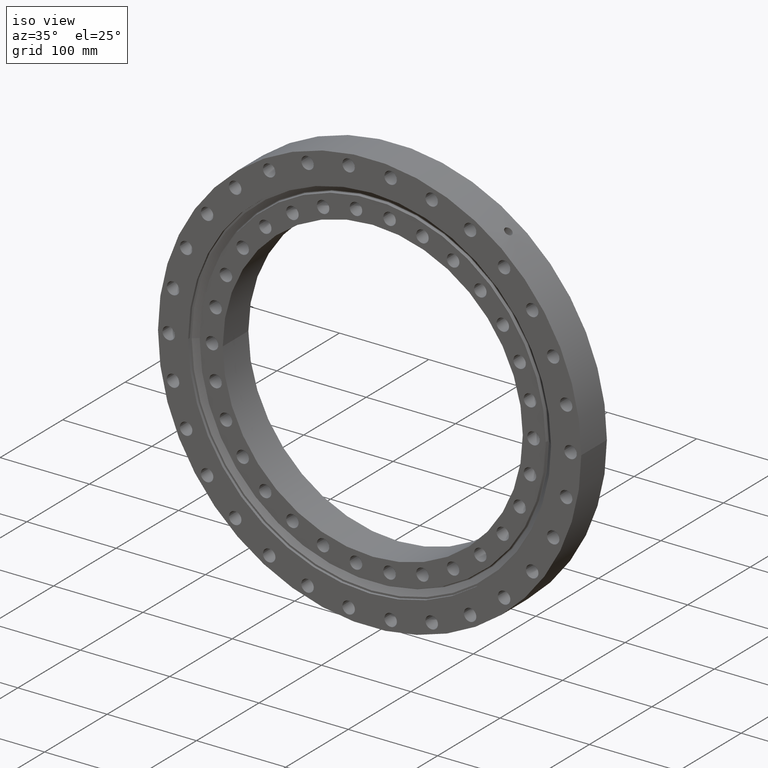
[diagram: clean part render]
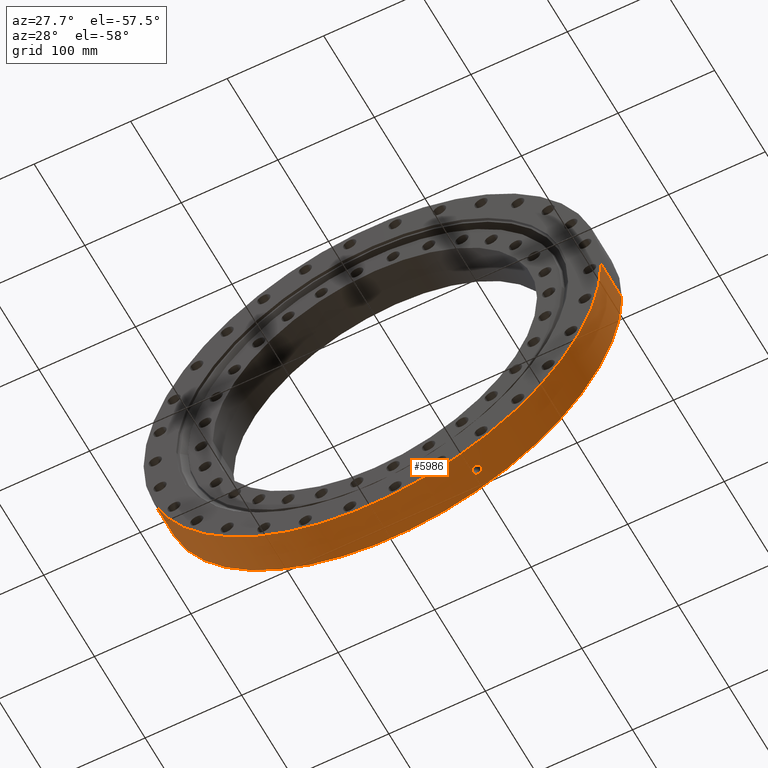
[diagram: tour spotlight — one face highlighted and labeled with its STEP entity id]
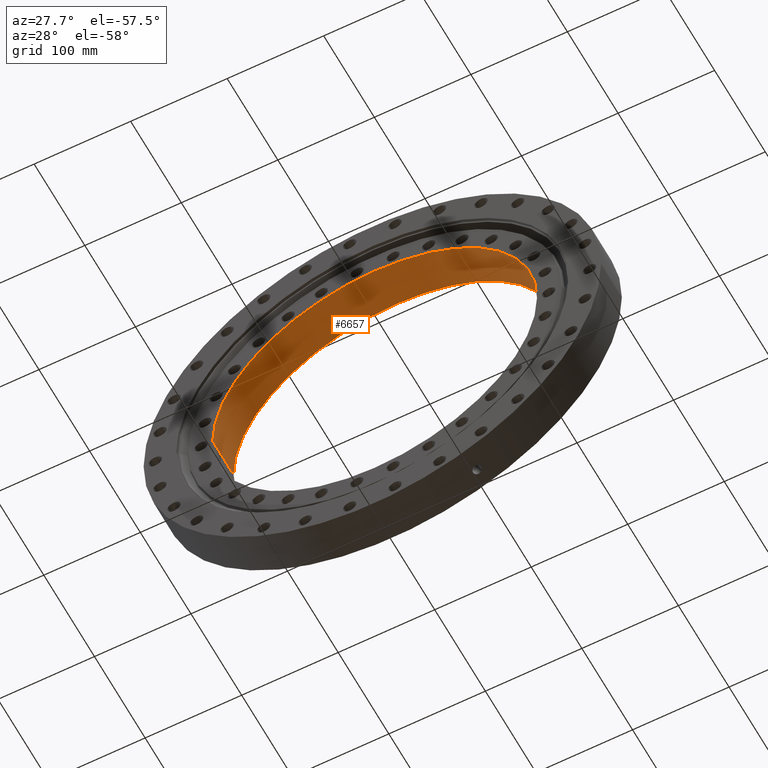
[diagram: tour spotlight — one face highlighted and labeled with its STEP entity id]
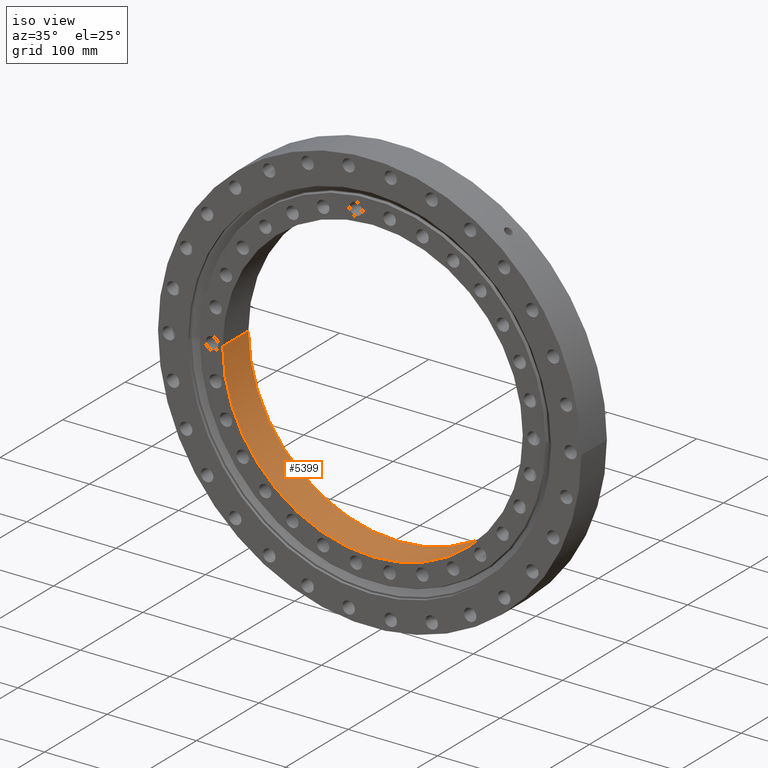
[diagram: tour spotlight — one face highlighted and labeled with its STEP entity id]
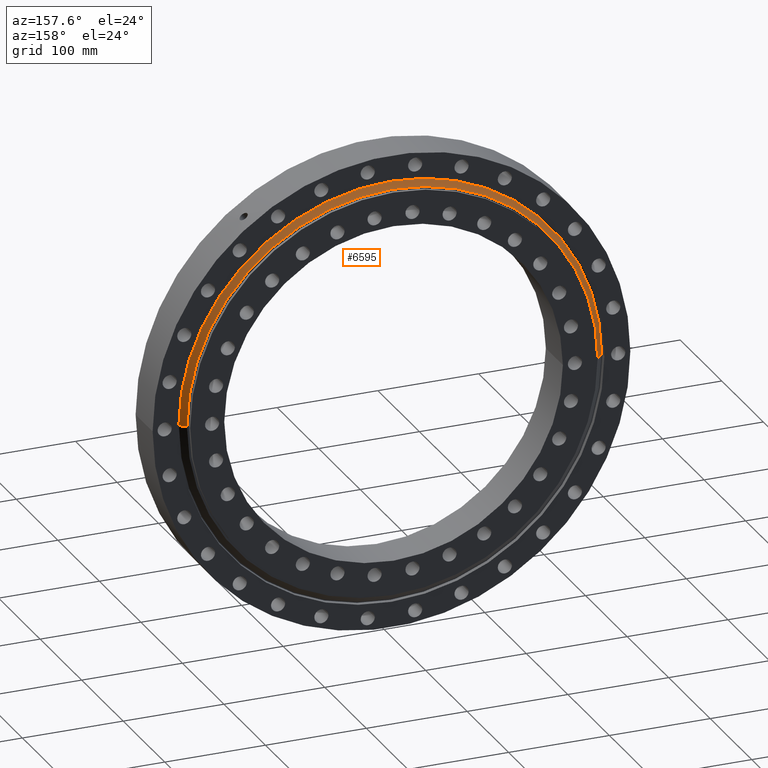
[diagram: tour spotlight — one face highlighted and labeled with its STEP entity id]
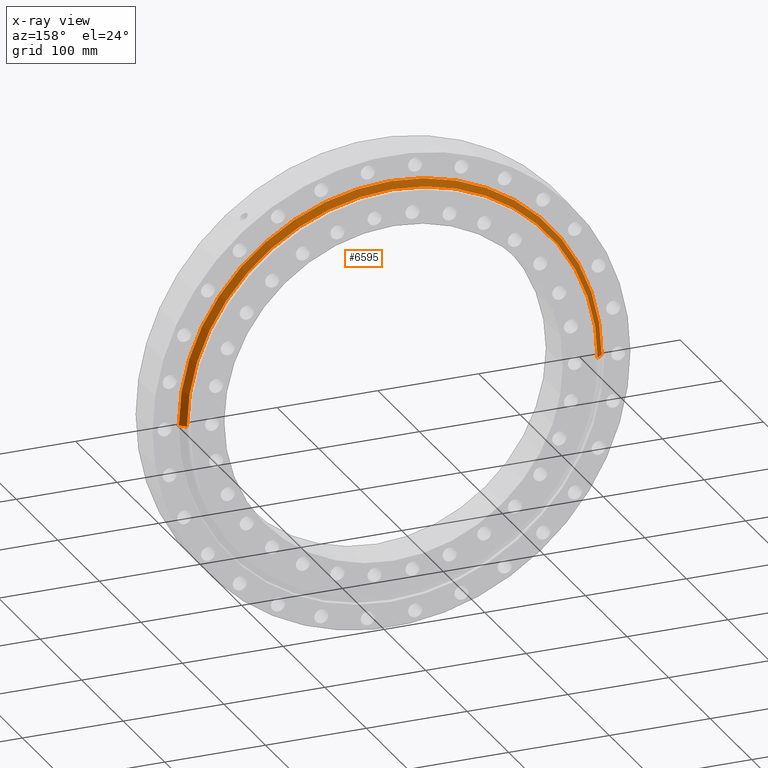
[diagram: x-ray of the same camera — body ghosted, this tour face saturated]
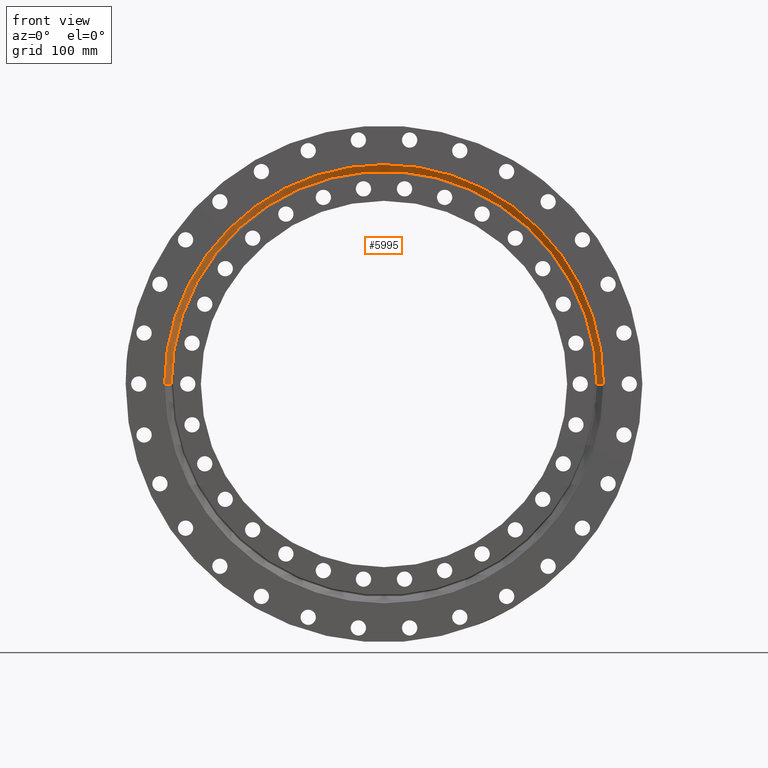
[diagram: tour spotlight — one face highlighted and labeled with its STEP entity id]
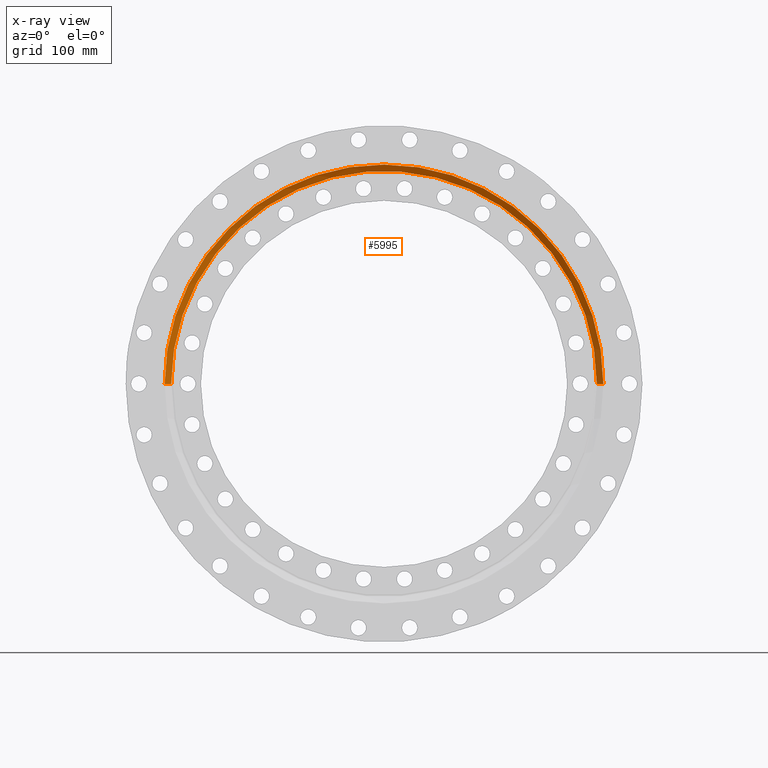
[diagram: x-ray of the same camera — body ghosted, this tour face saturated]
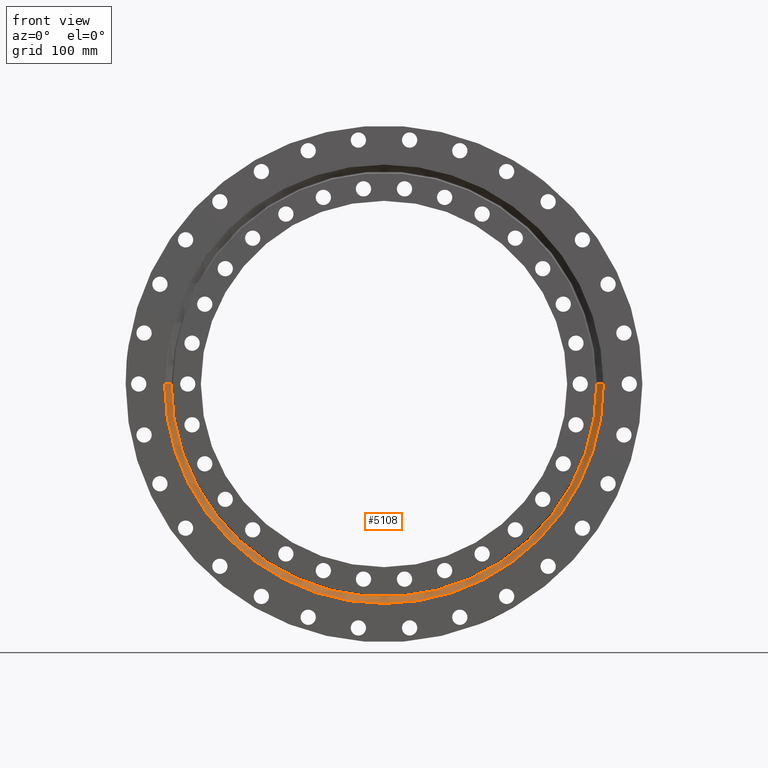
[diagram: tour spotlight — one face highlighted and labeled with its STEP entity id]
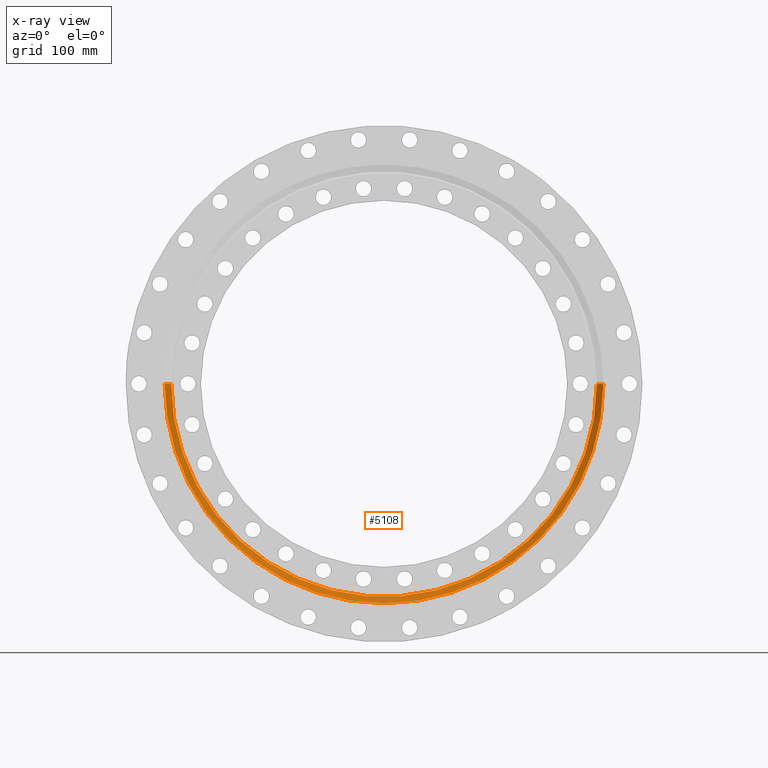
[diagram: x-ray of the same camera — body ghosted, this tour face saturated]
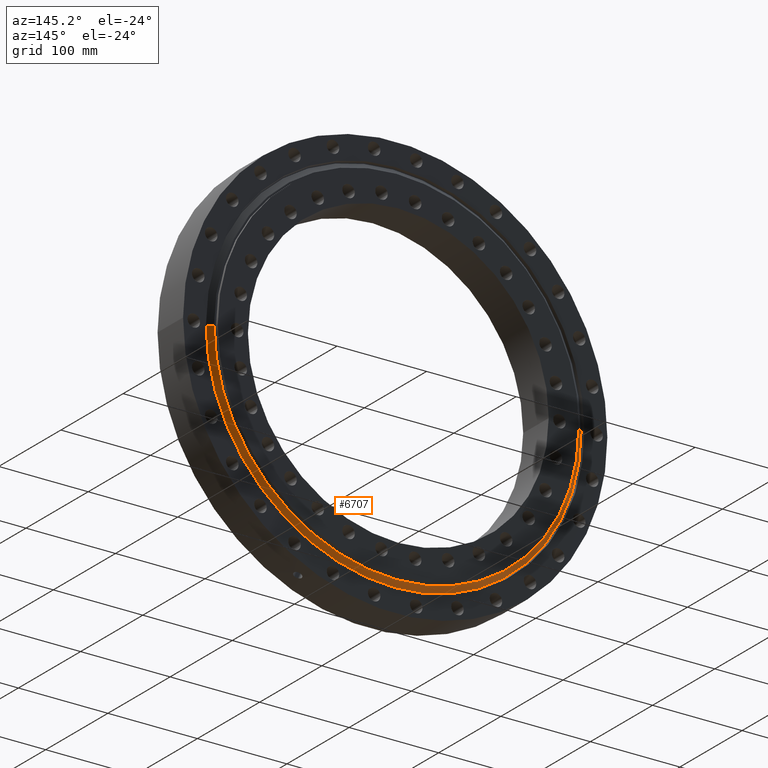
[diagram: tour spotlight — one face highlighted and labeled with its STEP entity id]
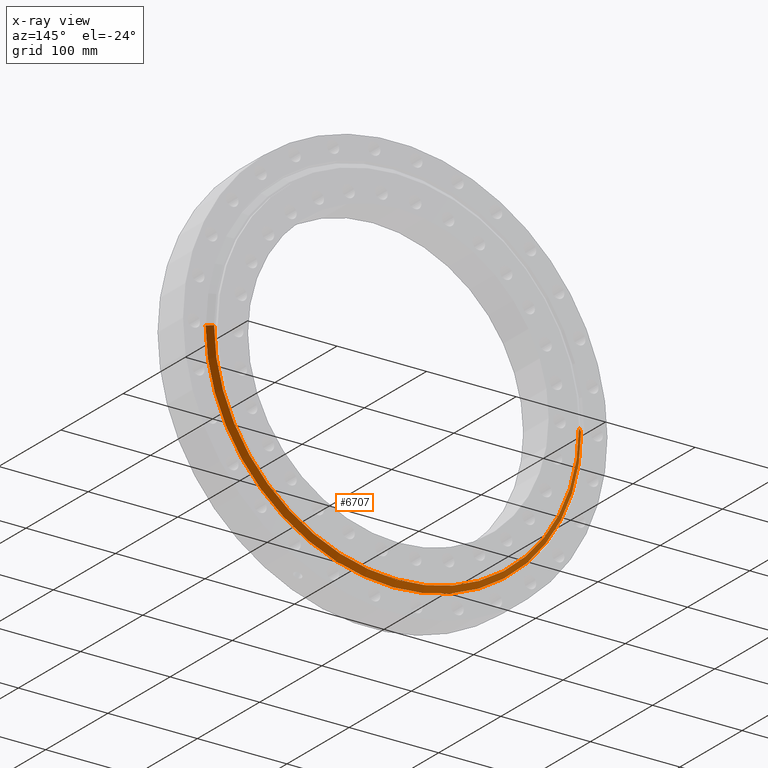
[diagram: x-ray of the same camera — body ghosted, this tour face saturated]
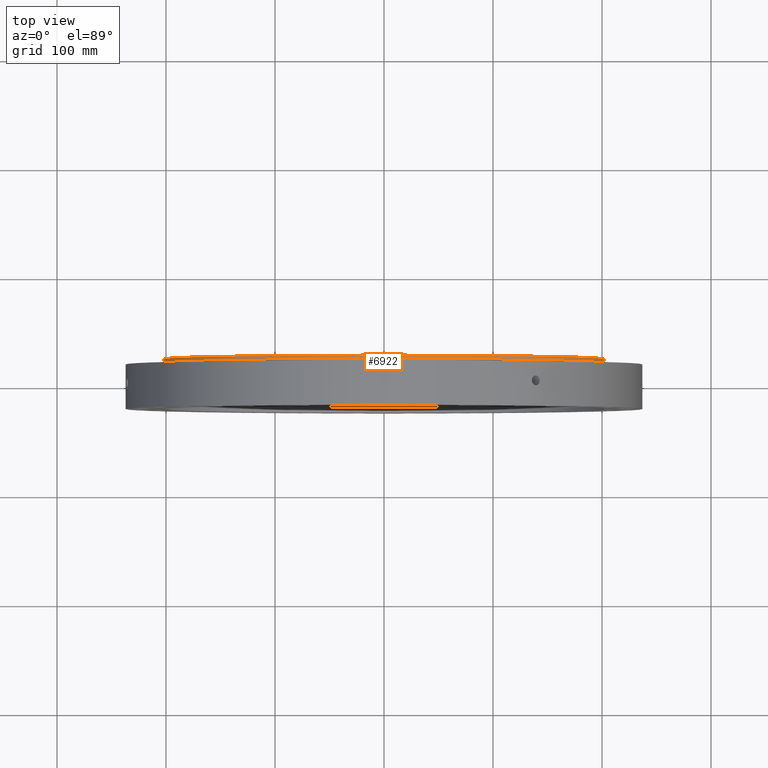
[diagram: tour spotlight — one face highlighted and labeled with its STEP entity id]
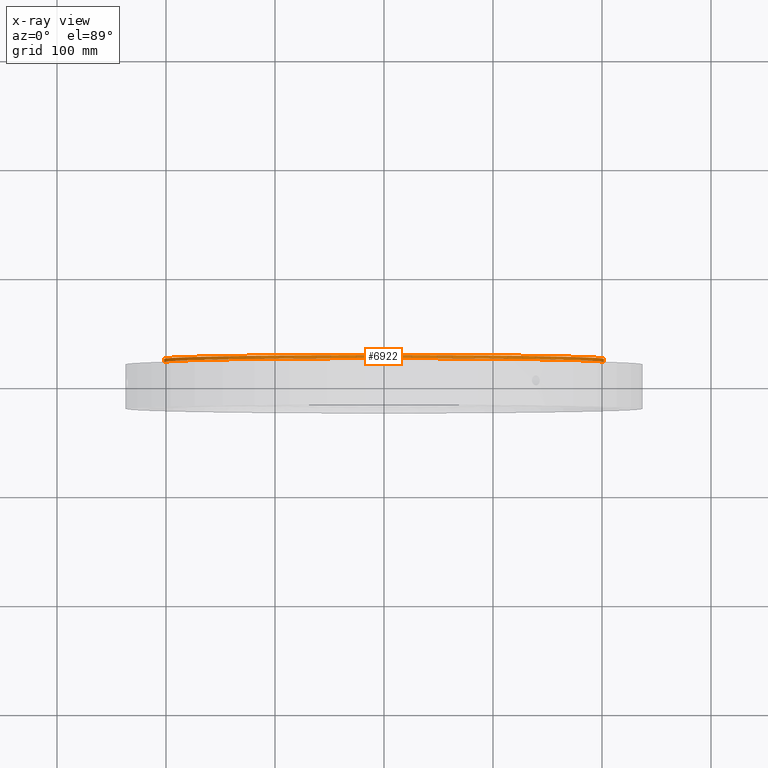
[diagram: x-ray of the same camera — body ghosted, this tour face saturated]
A machine part: a face-by-face anatomy tour. The part has 204 B-rep faces; the first image is the clean iso view, then the 8 largest visible faces are spotlighted one at a time (largest first), each with its STEP entity span.

Face 1 — auxiliary view, entity #5986. In plain terms, the highlighted cylindrical surface (partial cylindrical patch) has radius 237 mm, axis along (0, 1, 0).
Definition (entity closure, byte-faithful):
#3 = CARTESIAN_POINT ( 'NONE',  ( 100.4901609947200400, 3.620270686997019600E-009, -214.6409269996177600 ) ) ;
#71 = EDGE_CURVE ( 'NONE', #1976, #3892, #4608, .T. ) ;
#308 = ORIENTED_EDGE ( 'NONE', *, *, #3224, .T. ) ;
#378 = ORIENTED_EDGE ( 'NONE', *, *, #4064, .F. ) ;
#434 = CARTESIAN_POINT ( 'NONE',  ( 237.0000000000000000, 18.00000000000000400, 2.902412913979226800E-014 ) ) ;
#546 = ORIENTED_EDGE ( 'NONE', *, *, #3629, .F. ) ;
#562 = ORIENTED_EDGE ( 'NONE', *, *, #3875, .F. ) ;
#571 = ORIENTED_EDGE ( 'NONE', *, *, #71, .F. ) ;
#622 = EDGE_CURVE ( 'NONE', #2593, #3639, #6958, .T. ) ;
#858 = AXIS2_PLACEMENT_3D ( 'NONE', #3900, #3889, #2687 ) ;
#1026 = ORIENTED_EDGE ( 'NONE', *, *, #622, .T. ) ;
#1043 = DIRECTION ( 'NONE',  ( -1.000000000000000000, 0.0000000000000000000, 0.0000000000000000000 ) ) ;
#1124 = FACE_OUTER_BOUND ( 'NONE', #2529, .T. ) ;
#1442 = AXIS2_PLACEMENT_3D ( 'NONE', #1698, #1964, #1043 ) ;
#1555 = CARTESIAN_POINT ( 'NONE',  ( 92.29520850035233100, 0.5902201731421887800, -218.2901687120989600 ) ) ;
#1561 = CARTESIAN_POINT ( 'NONE',  ( 92.68818754524143300, 1.995818397773016200, -218.1236178787476400 ) ) ;
#1562 = CARTESIAN_POINT ( 'NONE',  ( 92.47999962413750600, 1.450265922157809100, -218.2119668039663300 ) ) ;
#1569 = CARTESIAN_POINT ( 'NONE',  ( 92.40051239382880500, 1.165115265983005300, -218.2456152545521200 ) ) ;
#1698 = CARTESIAN_POINT ( 'NONE',  ( 0.0000000000000000000, 22.16364734299516900, 0.0000000000000000000 ) ) ;
#1964 = DIRECTION ( 'NONE',  ( 0.0000000000000000000, 1.000000000000000000, 0.0000000000000000000 ) ) ;
#1976 = VERTEX_POINT ( 'NONE', #2217 ) ;
#2030 = AXIS2_PLACEMENT_3D ( 'NONE', #5813, #5791, #5799 ) ;
#2190 = CARTESIAN_POINT ( 'NONE',  ( 100.4901609947200300, -0.2935306186746002300, -214.6409269996177900 ) ) ;
#2217 = CARTESIAN_POINT ( 'NONE',  ( 100.4901609947200400, 3.620270686997019600E-009, -214.6409269996177600 ) ) ;
#2315 = B_SPLINE_CURVE_WITH_KNOTS ( 'NONE', 3,
 ( #4348, #6125, #1555, #1569, #1562, #1561, #5327, #5305, #5318, #5312, #5283, #5290, #5295, #5287, #5275, #5263, #5409, #5256, #5253, #5226, #5192, #5219, #5217, #5207, #5185, #5184, #5175, #5372, #5162, #5161, #5139, #5152, #5128, #5116 ),
 .UNSPECIFIED., .F., .F.,
 ( 4, 2, 2, 2, 2, 2, 2, 2, 2, 2, 2, 2, 2, 2, 2, 2, 4 ),
 ( 0.02110620238870187400, 0.02198530520462218400, 0.02286440802054249100, 0.02374351083646280100, 0.02462261365238310700, 0.02550171646830341800, 0.02638081928422372800, 0.02725992210014403800, 0.02813902491606434500, 0.02901812773198465100, 0.02989723054790496100, 0.03077633336382527100, 0.03165543617974558200, 0.03253453899566588500, 0.03341364181158619500, 0.03429274462750650500, 0.03517184744342681500 ),
 .UNSPECIFIED. ) ;
#2429 = VERTEX_POINT ( 'NONE', #434 ) ;
#2450 = CARTESIAN_POINT ( 'NONE',  ( 100.4635584351896100, -0.5916586236431368200, -214.6533874426810700 ) ) ;
#2465 = CARTESIAN_POINT ( 'NONE',  ( 97.46143164334711200, -4.356026667816502500, -216.0332207994348200 ) ) ;
#2529 = EDGE_LOOP ( 'NONE', ( #378, #1026, #308, #546 ) ) ;
#2588 = CARTESIAN_POINT ( 'NONE',  ( 98.45322200279406400, -3.904669630318122300, -215.5829829009079800 ) ) ;
#2593 = VERTEX_POINT ( 'NONE', #3451 ) ;
#2687 = DIRECTION ( 'NONE',  ( -1.000000000000000000, 0.0000000000000000000, 0.0000000000000000000 ) ) ;
#2735 = CARTESIAN_POINT ( 'NONE',  ( 99.48513867943819400, -2.972415666191123000, -215.1086965485530100 ) ) ;
#2737 = CARTESIAN_POINT ( 'NONE',  ( 93.11583595347930500, -2.743330947590920200, -217.9414320792788300 ) ) ;
#2751 = CARTESIAN_POINT ( 'NONE',  ( 92.81510068973624100, -2.253648559344720000, -218.0696764936296600 ) ) ;
#2757 = CARTESIAN_POINT ( 'NONE',  ( 97.71713438896443900, -4.271077411715782400, -215.9176603387134900 ) ) ;
#2794 = FACE_BOUND ( 'NONE', #7271, .T. ) ;
#2844 = VERTEX_POINT ( 'NONE', #3666 ) ;
#2962 = CARTESIAN_POINT ( 'NONE',  ( 92.26825187593661300, 3.620271238087932800E-009, -218.3015567872998600 ) ) ;
#2995 = CARTESIAN_POINT ( 'NONE',  ( 98.89655291397613700, -3.578935167528612700, -215.3799694979033200 ) ) ;
#3000 = CARTESIAN_POINT ( 'NONE',  ( 96.93545916574697700, -4.470816178069623200, -216.2697387598967700 ) ) ;
#3002 = CARTESIAN_POINT ( 'NONE',  ( 96.66318586674047700, -4.500121777277181300, -216.3915773758719200 ) ) ;
#3011 = VECTOR ( 'NONE', #4472, 1000.000000000000000 ) ;
#3027 = CARTESIAN_POINT ( 'NONE',  ( 99.10356608036630600, -3.392486275868144200, -215.2847587244368700 ) ) ;
#3037 = CARTESIAN_POINT ( 'NONE',  ( 93.88014341555006600, -3.576141458418463000, -217.6133713292441600 ) ) ;
#3040 = CARTESIAN_POINT ( 'NONE',  ( 95.06832692622208500, -4.269365525714881000, -217.0969519550434400 ) ) ;
#3045 = CARTESIAN_POINT ( 'NONE',  ( 94.57196214497052700, -4.044916529699988500, -217.3136381103858500 ) ) ;
#3052 = CARTESIAN_POINT ( 'NONE',  ( 95.85967680438768900, -4.471278850760725700, -216.7487174075187100 ) ) ;
#3054 = CARTESIAN_POINT ( 'NONE',  ( 98.21387252400037900, -4.045411622486161800, -215.6921640745773600 ) ) ;
#3070 = CARTESIAN_POINT ( 'NONE',  ( 94.33241414755156000, -3.905602196453701300, -217.4177001766382800 ) ) ;
#3088 = CARTESIAN_POINT ( 'NONE',  ( 95.32884064626034600, -4.355937805094904500, -216.9827096242600200 ) ) ;
#3089 = CARTESIAN_POINT ( 'NONE',  ( 96.12656291140088200, -4.499877436856617200, -216.6304922303562800 ) ) ;
#3110 = LINE ( 'NONE', #4691, #3011 ) ;
#3224 = EDGE_CURVE ( 'NONE', #3639, #2844, #5896, .T. ) ;
#3451 = CARTESIAN_POINT ( 'NONE',  ( 237.0000000000000000, -23.00000000000001400, 2.902412913979226800E-014 ) ) ;
#3542 = CARTESIAN_POINT ( 'NONE',  ( 92.29504713151082700, -0.5890188784448892000, -218.2902369373577200 ) ) ;
#3566 = CARTESIAN_POINT ( 'NONE',  ( 92.48017795204667400, -1.450711798165750700, -218.2118911019279900 ) ) ;
#3629 = EDGE_CURVE ( 'NONE', #2429, #2844, #4863, .T. ) ;
#3639 = VERTEX_POINT ( 'NONE', #5805 ) ;
#3662 = CARTESIAN_POINT ( 'NONE',  ( 92.40033004245690100, -1.164438999805416500, -218.2456924551332200 ) ) ;
#3666 = CARTESIAN_POINT ( 'NONE',  ( -237.0000000000000000, 18.00000000000000400, 0.0000000000000000000 ) ) ;
#3698 = CARTESIAN_POINT ( 'NONE',  ( 100.3592666416438000, -1.168798980449056600, -214.7021679285747700 ) ) ;
#3704 = CARTESIAN_POINT ( 'NONE',  ( 100.2821623320577700, -1.449309042600405600, -214.7382142210990400 ) ) ;
#3713 = CARTESIAN_POINT ( 'NONE',  ( 100.0776675749475800, -1.994114082652979100, -214.8335941644557700 ) ) ;
#3723 = CARTESIAN_POINT ( 'NONE',  ( 93.29054778210860400, -2.974764442003903700, -217.8667408377469000 ) ) ;
#3746 = CARTESIAN_POINT ( 'NONE',  ( 92.68792082285695200, -1.995140862134696900, -218.1237310928311800 ) ) ;
#3787 = CARTESIAN_POINT ( 'NONE',  ( 92.26825187593659900, -0.2968299978523457100, -218.3015567872999400 ) ) ;
#3852 = CARTESIAN_POINT ( 'NONE',  ( 99.65402253378037800, -2.745178811162011900, -215.0304684788169100 ) ) ;
#3855 = CARTESIAN_POINT ( 'NONE',  ( 99.94977729763522200, -2.257606856043225200, -214.8931562417375300 ) ) ;
#3868 = CARTESIAN_POINT ( 'NONE',  ( 93.67195640284165800, -3.389719113196599100, -217.7030262821627700 ) ) ;
#3875 = EDGE_CURVE ( 'NONE', #3892, #1976, #2315, .T. ) ;
#3889 = DIRECTION ( 'NONE',  ( 0.0000000000000000000, 1.000000000000000000, 0.0000000000000000000 ) ) ;
#3892 = VERTEX_POINT ( 'NONE', #5088 ) ;
#3900 = CARTESIAN_POINT ( 'NONE',  ( 0.0000000000000000000, -23.00000000000001400, 0.0000000000000000000 ) ) ;
#4064 = EDGE_CURVE ( 'NONE', #2593, #2429, #3110, .T. ) ;
#4348 = CARTESIAN_POINT ( 'NONE',  ( 92.26825187593661300, 3.620271238087932800E-009, -218.3015567872998600 ) ) ;
#4472 = DIRECTION ( 'NONE',  ( 0.0000000000000000000, 1.000000000000000000, 0.0000000000000000000 ) ) ;
#4608 = B_SPLINE_CURVE_WITH_KNOTS ( 'NONE', 3,
 ( #3, #2190, #2450, #3698, #3704, #3713, #3855, #3852, #2735, #3027, #2995, #2588, #3054, #2757, #2465, #3000, #3002, #3089, #3052, #3088, #3040, #3045, #3070, #3037, #3868, #3723, #2737, #2751, #3746, #3566, #3662, #3542, #3787, #2962 ),
 .UNSPECIFIED., .F., .F.,
 ( 4, 2, 2, 2, 2, 2, 2, 2, 2, 2, 2, 2, 2, 2, 2, 2, 4 ),
 ( 0.007036280401974018100, 0.007915650526144509700, 0.008795020650315000400, 0.009674390774485491100, 0.01055376089865598200, 0.01143313102282647300, 0.01231250114699696300, 0.01319187127116745400, 0.01407124139533794500, 0.01495061151950843500, 0.01582998164367892600, 0.01670935176784941700, 0.01758872189201991100, 0.01846809201619040200, 0.01934746214036089200, 0.02022683226453138300, 0.02110620238870187400 ),
 .UNSPECIFIED. ) ;
#4691 = CARTESIAN_POINT ( 'NONE',  ( 237.0000000000000000, 22.16364734299516900, 2.902412913979226800E-014 ) ) ;
#4863 = CIRCLE ( 'NONE', #2030, 237.0000000000000000 ) ;
#5088 = CARTESIAN_POINT ( 'NONE',  ( 92.26825187593661300, 3.620271238087932800E-009, -218.3015567872998600 ) ) ;
#5116 = CARTESIAN_POINT ( 'NONE',  ( 100.4901609947200400, 3.620270686997019600E-009, -214.6409269996177600 ) ) ;
#5128 = CARTESIAN_POINT ( 'NONE',  ( 100.4901609947200700, 0.2934413993712105000, -214.6409269996177900 ) ) ;
#5139 = CARTESIAN_POINT ( 'NONE',  ( 100.3600129588198400, 1.166182558648154000, -214.7018190886976800 ) ) ;
#5152 = CARTESIAN_POINT ( 'NONE',  ( 100.4644148409219500, 0.5853823953969682400, -214.6529866360156100 ) ) ;
#5161 = CARTESIAN_POINT ( 'NONE',  ( 100.2819044406312200, 1.449780263145493900, -214.7383342533775900 ) ) ;
#5162 = CARTESIAN_POINT ( 'NONE',  ( 100.0788019024823300, 1.991306988786929000, -214.8330653459074100 ) ) ;
#5175 = CARTESIAN_POINT ( 'NONE',  ( 99.65413230943573800, 2.745299921589565300, -215.0304185950985500 ) ) ;
#5184 = CARTESIAN_POINT ( 'NONE',  ( 99.48523987766616000, 2.971931817696907600, -215.1086471110887100 ) ) ;
#5185 = CARTESIAN_POINT ( 'NONE',  ( 99.10859912637582200, 3.387312844740947500, -215.2824391228579700 ) ) ;
#5192 = CARTESIAN_POINT ( 'NONE',  ( 97.72280274286349300, 4.268944174392861300, -215.9150944107313400 ) ) ;
#5207 = CARTESIAN_POINT ( 'NONE',  ( 98.89833356162520800, 3.577503004879497400, -215.3791526086305300 ) ) ;
#5217 = CARTESIAN_POINT ( 'NONE',  ( 98.45381016536777000, 3.904360681608869400, -215.5827150390307700 ) ) ;
#5219 = CARTESIAN_POINT ( 'NONE',  ( 98.21877023596482600, 4.042735248535610300, -215.6899333386942600 ) ) ;
#5226 = CARTESIAN_POINT ( 'NONE',  ( 97.46244875149381000, 4.355669726742699600, -216.0327607825048500 ) ) ;
#5253 = CARTESIAN_POINT ( 'NONE',  ( 96.93805891246493900, 4.470382854745718500, -216.2685723405784600 ) ) ;
#5256 = CARTESIAN_POINT ( 'NONE',  ( 96.67130567886195500, 4.499766978894613500, -216.3879548282349100 ) ) ;
#5263 = CARTESIAN_POINT ( 'NONE',  ( 95.85923284321562200, 4.471287641246855800, -216.7489151689115700 ) ) ;
#5275 = CARTESIAN_POINT ( 'NONE',  ( 95.32646377119641600, 4.355315553952318700, -216.9837552746025700 ) ) ;
#5283 = CARTESIAN_POINT ( 'NONE',  ( 93.88016250030794700, 3.576078575793006000, -217.6133621568353900 ) ) ;
#5287 = CARTESIAN_POINT ( 'NONE',  ( 95.06796689811460500, 4.269226786308148100, -217.0971095179060600 ) ) ;
#5290 = CARTESIAN_POINT ( 'NONE',  ( 94.33090889279843300, 3.904582226720259000, -217.4183523250619000 ) ) ;
#5295 = CARTESIAN_POINT ( 'NONE',  ( 94.57174246939195000, 4.044793121827863700, -217.3137336144996800 ) ) ;
#5305 = CARTESIAN_POINT ( 'NONE',  ( 93.11561228203083800, 2.742949898316132900, -217.9415274011905700 ) ) ;
#5312 = CARTESIAN_POINT ( 'NONE',  ( 93.67215575913968500, 3.389932403685174100, -217.7029406846940600 ) ) ;
#5318 = CARTESIAN_POINT ( 'NONE',  ( 93.29039937134474800, 2.974606591865529600, -217.8668045675222500 ) ) ;
#5327 = CARTESIAN_POINT ( 'NONE',  ( 92.81547108538718800, 2.254268523519911100, -218.0695186031717900 ) ) ;
#5372 = CARTESIAN_POINT ( 'NONE',  ( 99.95224755534866300, 2.253229774089493100, -214.8920082649983100 ) ) ;
#5409 = CARTESIAN_POINT ( 'NONE',  ( 96.12827151872797100, 4.500230294548322800, -216.6297388430867000 ) ) ;
#5791 = DIRECTION ( 'NONE',  ( 0.0000000000000000000, 1.000000000000000000, 0.0000000000000000000 ) ) ;
#5799 = DIRECTION ( 'NONE',  ( -1.000000000000000000, 0.0000000000000000000, 0.0000000000000000000 ) ) ;
#5805 = CARTESIAN_POINT ( 'NONE',  ( -237.0000000000000000, -23.00000000000001400, 0.0000000000000000000 ) ) ;
#5813 = CARTESIAN_POINT ( 'NONE',  ( 0.0000000000000000000, 18.00000000000000400, 0.0000000000000000000 ) ) ;
#5889 = VECTOR ( 'NONE', #7179, 1000.000000000000000 ) ;
#5896 = LINE ( 'NONE', #7221, #5889 ) ;
#5986 = ADVANCED_FACE ( 'NONE', ( #1124, #2794 ), #7178, .T. ) ;
#6125 = CARTESIAN_POINT ( 'NONE',  ( 92.26825187593658500, 0.2967397756137254400, -218.3015567872998300 ) ) ;
#6958 = CIRCLE ( 'NONE', #858, 237.0000000000000000 ) ;
#7178 = CYLINDRICAL_SURFACE ( 'NONE', #1442, 237.0000000000000000 ) ;
#7179 = DIRECTION ( 'NONE',  ( 0.0000000000000000000, 1.000000000000000000, 0.0000000000000000000 ) ) ;
#7221 = CARTESIAN_POINT ( 'NONE',  ( -237.0000000000000000, 22.16364734299516900, 0.0000000000000000000 ) ) ;
#7271 = EDGE_LOOP ( 'NONE', ( #571, #562 ) ) ;

Face 2 — auxiliary view, entity #6657. In plain terms, the highlighted cylindrical surface (partial cylindrical patch) has radius 168 mm, axis along (0, 1, 0).
Definition (entity closure, byte-faithful):
#769 = DIRECTION ( 'NONE',  ( 2.727064569436389700E-017, 1.000000000000000000, 0.0000000000000000000 ) ) ;
#797 = VERTEX_POINT ( 'NONE', #4427 ) ;
#1170 = VERTEX_POINT ( 'NONE', #7066 ) ;
#1207 = CARTESIAN_POINT ( 'NONE',  ( -168.0000000000000300, -18.00000000000000700, 0.0000000000000000000 ) ) ;
#1247 = CIRCLE ( 'NONE', #5994, 168.0000000000000300 ) ;
#1255 = DIRECTION ( 'NONE',  ( 2.727064569436389700E-017, 1.000000000000000000, 0.0000000000000000000 ) ) ;
#1258 = DIRECTION ( 'NONE',  ( -1.000000000000000000, 2.065146995210484400E-017, 0.0000000000000000000 ) ) ;
#1296 = CARTESIAN_POINT ( 'NONE',  ( 1.692367527159823000E-015, 31.02910628019324300, 0.0000000000000000000 ) ) ;
#1377 = CARTESIAN_POINT ( 'NONE',  ( 168.0000000000000300, 22.99999999999998900, 2.057406622567553600E-014 ) ) ;
#1831 = EDGE_CURVE ( 'NONE', #1170, #4908, #3085, .T. ) ;
#2299 = VERTEX_POINT ( 'NONE', #1207 ) ;
#2384 = DIRECTION ( 'NONE',  ( -1.000000000000000000, 2.065146995210484400E-017, 0.0000000000000000000 ) ) ;
#3085 = CIRCLE ( 'NONE', #7115, 168.0000000000000300 ) ;
#3135 = AXIS2_PLACEMENT_3D ( 'NONE', #1296, #1255, #1258 ) ;
#3620 = VECTOR ( 'NONE', #4948, 1000.000000000000000 ) ;
#3689 = LINE ( 'NONE', #4987, #3620 ) ;
#3929 = EDGE_CURVE ( 'NONE', #797, #4908, #3689, .T. ) ;
#3986 = DIRECTION ( 'NONE',  ( 2.727064569436389700E-017, 1.000000000000000000, 0.0000000000000000000 ) ) ;
#4236 = DIRECTION ( 'NONE',  ( -1.000000000000000000, 2.065146995210484400E-017, 0.0000000000000000000 ) ) ;
#4245 = CARTESIAN_POINT ( 'NONE',  ( 1.473408614550280900E-015, 22.99999999999999300, 0.0000000000000000000 ) ) ;
#4427 = CARTESIAN_POINT ( 'NONE',  ( 168.0000000000000300, -18.00000000000001400, 2.057406622567553600E-014 ) ) ;
#4908 = VERTEX_POINT ( 'NONE', #1377 ) ;
#4948 = DIRECTION ( 'NONE',  ( 2.727064569436389700E-017, 1.000000000000000000, 0.0000000000000000000 ) ) ;
#4987 = CARTESIAN_POINT ( 'NONE',  ( 168.0000000000000300, 31.02910628019324000, 2.057406622567553600E-014 ) ) ;
#5172 = EDGE_CURVE ( 'NONE', #2299, #797, #1247, .T. ) ;
#5284 = CARTESIAN_POINT ( 'NONE',  ( 3.553121410813609700E-016, -18.00000000000001100, 0.0000000000000000000 ) ) ;
#5291 = EDGE_LOOP ( 'NONE', ( #5982, #6184, #6194, #6289 ) ) ;
#5982 = ORIENTED_EDGE ( 'NONE', *, *, #3929, .F. ) ;
#5994 = AXIS2_PLACEMENT_3D ( 'NONE', #5284, #769, #2384 ) ;
#6184 = ORIENTED_EDGE ( 'NONE', *, *, #5172, .F. ) ;
#6194 = ORIENTED_EDGE ( 'NONE', *, *, #6544, .T. ) ;
#6232 = CARTESIAN_POINT ( 'NONE',  ( -168.0000000000000300, 31.02910628019324700, 0.0000000000000000000 ) ) ;
#6243 = DIRECTION ( 'NONE',  ( 2.727064569436389700E-017, 1.000000000000000000, 0.0000000000000000000 ) ) ;
#6289 = ORIENTED_EDGE ( 'NONE', *, *, #1831, .T. ) ;
#6497 = CYLINDRICAL_SURFACE ( 'NONE', #3135, 168.0000000000000300 ) ;
#6544 = EDGE_CURVE ( 'NONE', #2299, #1170, #7202, .T. ) ;
#6657 = ADVANCED_FACE ( 'NONE', ( #6687 ), #6497, .F. ) ;
#6687 = FACE_OUTER_BOUND ( 'NONE', #5291, .T. ) ;
#7030 = VECTOR ( 'NONE', #6243, 1000.000000000000000 ) ;
#7066 = CARTESIAN_POINT ( 'NONE',  ( -168.0000000000000300, 22.99999999999999600, 0.0000000000000000000 ) ) ;
#7115 = AXIS2_PLACEMENT_3D ( 'NONE', #4245, #3986, #4236 ) ;
#7202 = LINE ( 'NONE', #6232, #7030 ) ;

Face 3 — iso view, entity #5399. In plain terms, the highlighted cylindrical surface (partial cylindrical patch) has radius 168 mm, axis along (0, 1, 0).
Definition (entity closure, byte-faithful):
#419 = DIRECTION ( 'NONE',  ( -1.000000000000000000, 2.065146995210484400E-017, 0.0000000000000000000 ) ) ;
#797 = VERTEX_POINT ( 'NONE', #4427 ) ;
#1117 = CYLINDRICAL_SURFACE ( 'NONE', #4356, 168.0000000000000300 ) ;
#1170 = VERTEX_POINT ( 'NONE', #7066 ) ;
#1180 = DIRECTION ( 'NONE',  ( 2.727064569436389700E-017, 1.000000000000000000, 0.0000000000000000000 ) ) ;
#1207 = CARTESIAN_POINT ( 'NONE',  ( -168.0000000000000300, -18.00000000000000700, 0.0000000000000000000 ) ) ;
#1238 = CARTESIAN_POINT ( 'NONE',  ( 1.692367527159823000E-015, 31.02910628019324300, 0.0000000000000000000 ) ) ;
#1377 = CARTESIAN_POINT ( 'NONE',  ( 168.0000000000000300, 22.99999999999998900, 2.057406622567553600E-014 ) ) ;
#1526 = DIRECTION ( 'NONE',  ( -1.000000000000000000, 2.065146995210484400E-017, 0.0000000000000000000 ) ) ;
#1593 = DIRECTION ( 'NONE',  ( 2.727064569436389700E-017, 1.000000000000000000, 0.0000000000000000000 ) ) ;
#1649 = CARTESIAN_POINT ( 'NONE',  ( 3.553121410813609700E-016, -18.00000000000001100, 0.0000000000000000000 ) ) ;
#1722 = CIRCLE ( 'NONE', #6875, 168.0000000000000300 ) ;
#2042 = ORIENTED_EDGE ( 'NONE', *, *, #4896, .F. ) ;
#2108 = AXIS2_PLACEMENT_3D ( 'NONE', #6513, #5854, #5867 ) ;
#2299 = VERTEX_POINT ( 'NONE', #1207 ) ;
#2466 = ORIENTED_EDGE ( 'NONE', *, *, #3929, .T. ) ;
#3620 = VECTOR ( 'NONE', #4948, 1000.000000000000000 ) ;
#3689 = LINE ( 'NONE', #4987, #3620 ) ;
#3929 = EDGE_CURVE ( 'NONE', #797, #4908, #3689, .T. ) ;
#4356 = AXIS2_PLACEMENT_3D ( 'NONE', #1238, #1180, #419 ) ;
#4427 = CARTESIAN_POINT ( 'NONE',  ( 168.0000000000000300, -18.00000000000001400, 2.057406622567553600E-014 ) ) ;
#4741 = ORIENTED_EDGE ( 'NONE', *, *, #5838, .T. ) ;
#4763 = CIRCLE ( 'NONE', #2108, 168.0000000000000300 ) ;
#4896 = EDGE_CURVE ( 'NONE', #797, #2299, #1722, .T. ) ;
#4908 = VERTEX_POINT ( 'NONE', #1377 ) ;
#4948 = DIRECTION ( 'NONE',  ( 2.727064569436389700E-017, 1.000000000000000000, 0.0000000000000000000 ) ) ;
#4987 = CARTESIAN_POINT ( 'NONE',  ( 168.0000000000000300, 31.02910628019324000, 2.057406622567553600E-014 ) ) ;
#5399 = ADVANCED_FACE ( 'NONE', ( #6892 ), #1117, .F. ) ;
#5838 = EDGE_CURVE ( 'NONE', #4908, #1170, #4763, .T. ) ;
#5854 = DIRECTION ( 'NONE',  ( 2.727064569436389700E-017, 1.000000000000000000, 0.0000000000000000000 ) ) ;
#5867 = DIRECTION ( 'NONE',  ( -1.000000000000000000, 2.065146995210484400E-017, 0.0000000000000000000 ) ) ;
#6056 = ORIENTED_EDGE ( 'NONE', *, *, #6544, .F. ) ;
#6232 = CARTESIAN_POINT ( 'NONE',  ( -168.0000000000000300, 31.02910628019324700, 0.0000000000000000000 ) ) ;
#6243 = DIRECTION ( 'NONE',  ( 2.727064569436389700E-017, 1.000000000000000000, 0.0000000000000000000 ) ) ;
#6513 = CARTESIAN_POINT ( 'NONE',  ( 1.473408614550280900E-015, 22.99999999999999300, 0.0000000000000000000 ) ) ;
#6544 = EDGE_CURVE ( 'NONE', #2299, #1170, #7202, .T. ) ;
#6825 = EDGE_LOOP ( 'NONE', ( #2042, #2466, #4741, #6056 ) ) ;
#6875 = AXIS2_PLACEMENT_3D ( 'NONE', #1649, #1593, #1526 ) ;
#6892 = FACE_OUTER_BOUND ( 'NONE', #6825, .T. ) ;
#7030 = VECTOR ( 'NONE', #6243, 1000.000000000000000 ) ;
#7066 = CARTESIAN_POINT ( 'NONE',  ( -168.0000000000000300, 22.99999999999999600, 0.0000000000000000000 ) ) ;
#7202 = LINE ( 'NONE', #6232, #7030 ) ;

Face 4 — auxiliary view, entity #6595. An x-ray twin of the same camera follows (body ghosted, this face saturated) — the face is partly hidden behind the body. In plain terms, the highlighted conical surface has half-angle 49.914 deg.
Definition (entity closure, byte-faithful):
#208 = EDGE_CURVE ( 'NONE', #4932, #2726, #4050, .T. ) ;
#681 = CARTESIAN_POINT ( 'NONE',  ( 209.7500000000000300, 14.99999999999995700, 0.0000000000000000000 ) ) ;
#793 = EDGE_CURVE ( 'NONE', #3212, #2292, #3586, .T. ) ;
#1549 = CARTESIAN_POINT ( 'NONE',  ( -203.7500000000000300, 20.05000000000003600, 2.531957257237153000E-014 ) ) ;
#2084 = DIRECTION ( 'NONE',  ( -1.000000000000000000, 1.819495421763516100E-016, 0.0000000000000000000 ) ) ;
#2171 = DIRECTION ( 'NONE',  ( 1.000000000000000000, -1.819495421763516100E-016, 0.0000000000000000000 ) ) ;
#2219 = DIRECTION ( 'NONE',  ( -1.836909530733565900E-016, -1.000000000000000000, -0.0000000000000000000 ) ) ;
#2292 = VERTEX_POINT ( 'NONE', #681 ) ;
#2297 = CARTESIAN_POINT ( 'NONE',  ( -3.040196197852624600E-015, 14.99999999999999600, 0.0000000000000000000 ) ) ;
#2350 = ORIENTED_EDGE ( 'NONE', *, *, #793, .F. ) ;
#2648 = EDGE_CURVE ( 'NONE', #4932, #3212, #7245, .T. ) ;
#2726 = VERTEX_POINT ( 'NONE', #3069 ) ;
#3069 = CARTESIAN_POINT ( 'NONE',  ( -209.7500000000000300, 15.00000000000003400, 2.568696661211573800E-014 ) ) ;
#3136 = ORIENTED_EDGE ( 'NONE', *, *, #208, .T. ) ;
#3138 = AXIS2_PLACEMENT_3D ( 'NONE', #3209, #6941, #2084 ) ;
#3154 = CARTESIAN_POINT ( 'NONE',  ( -2.112556884832173300E-015, 20.04999999999999700, 0.0000000000000000000 ) ) ;
#3165 = DIRECTION ( 'NONE',  ( 1.836909530733565900E-016, 1.000000000000000000, 0.0000000000000000000 ) ) ;
#3170 = DIRECTION ( 'NONE',  ( -1.000000000000000000, 1.873075655042441800E-016, 0.0000000000000000000 ) ) ;
#3209 = CARTESIAN_POINT ( 'NONE',  ( -3.040196197852624600E-015, 14.99999999999999600, 0.0000000000000000000 ) ) ;
#3212 = VERTEX_POINT ( 'NONE', #7236 ) ;
#3586 = LINE ( 'NONE', #4370, #5555 ) ;
#3844 = ORIENTED_EDGE ( 'NONE', *, *, #5645, .T. ) ;
#3969 = AXIS2_PLACEMENT_3D ( 'NONE', #2297, #2219, #2171 ) ;
#4050 = LINE ( 'NONE', #6128, #5412 ) ;
#4169 = AXIS2_PLACEMENT_3D ( 'NONE', #3154, #3165, #3170 ) ;
#4242 = CIRCLE ( 'NONE', #3138, 209.7500000000000300 ) ;
#4370 = CARTESIAN_POINT ( 'NONE',  ( 209.7500000000000300, 14.99999999999995700, 0.0000000000000000000 ) ) ;
#4412 = DIRECTION ( 'NONE',  ( 0.7650765054985571000, -0.6439393921279520400, 0.0000000000000000000 ) ) ;
#4932 = VERTEX_POINT ( 'NONE', #1549 ) ;
#5412 = VECTOR ( 'NONE', #5998, 1000.000000000000000 ) ;
#5439 = ORIENTED_EDGE ( 'NONE', *, *, #2648, .F. ) ;
#5555 = VECTOR ( 'NONE', #4412, 1000.000000000000200 ) ;
#5645 = EDGE_CURVE ( 'NONE', #2726, #2292, #4242, .T. ) ;
#5998 = DIRECTION ( 'NONE',  ( -0.7650765054985572100, -0.6439393921279518200, 9.369484935616503600E-017 ) ) ;
#6128 = CARTESIAN_POINT ( 'NONE',  ( -209.7500000000000300, 15.00000000000003400, 2.568696661211573500E-014 ) ) ;
#6595 = ADVANCED_FACE ( 'NONE', ( #6900 ), #6793, .T. ) ;
#6793 = CONICAL_SURFACE ( 'NONE', #3969, 209.7500000000000300, 0.8711601305813101400 ) ;
#6900 = FACE_OUTER_BOUND ( 'NONE', #7089, .T. ) ;
#6941 = DIRECTION ( 'NONE',  ( 1.836909530733565900E-016, 1.000000000000000000, 0.0000000000000000000 ) ) ;
#7089 = EDGE_LOOP ( 'NONE', ( #5439, #3136, #3844, #2350 ) ) ;
#7236 = CARTESIAN_POINT ( 'NONE',  ( 203.7500000000000300, 20.04999999999996200, 0.0000000000000000000 ) ) ;
#7245 = CIRCLE ( 'NONE', #4169, 203.7500000000000300 ) ;

Face 5 — front view, entity #5995. An x-ray twin of the same camera follows (body ghosted, this face saturated) — the face is partly hidden behind the body. In plain terms, the highlighted conical surface has half-angle 49.914 deg.
Definition (entity closure, byte-faithful):
#349 = ORIENTED_EDGE ( 'NONE', *, *, #2689, .F. ) ;
#889 = ORIENTED_EDGE ( 'NONE', *, *, #4183, .F. ) ;
#1041 = AXIS2_PLACEMENT_3D ( 'NONE', #4484, #6689, #4520 ) ;
#1379 = VERTEX_POINT ( 'NONE', #2071 ) ;
#1482 = AXIS2_PLACEMENT_3D ( 'NONE', #3788, #3602, #5231 ) ;
#2071 = CARTESIAN_POINT ( 'NONE',  ( -201.2499999999999700, -20.04999999999996500, 2.464601683284048000E-014 ) ) ;
#2127 = CARTESIAN_POINT ( 'NONE',  ( 201.2499999999999700, -20.05000000000003300, 0.0000000000000000000 ) ) ;
#2283 = AXIS2_PLACEMENT_3D ( 'NONE', #6332, #6338, #6295 ) ;
#2638 = ORIENTED_EDGE ( 'NONE', *, *, #3461, .T. ) ;
#2689 = EDGE_CURVE ( 'NONE', #3755, #1379, #7206, .T. ) ;
#2819 = CIRCLE ( 'NONE', #1041, 201.2499999999999700 ) ;
#3163 = LINE ( 'NONE', #2127, #4132 ) ;
#3219 = DIRECTION ( 'NONE',  ( -0.7650765054985579900, -0.6439393921279510400, 9.369484935616511000E-017 ) ) ;
#3258 = ORIENTED_EDGE ( 'NONE', *, *, #5373, .T. ) ;
#3404 = VERTEX_POINT ( 'NONE', #6612 ) ;
#3428 = EDGE_LOOP ( 'NONE', ( #349, #2638, #3258, #889 ) ) ;
#3461 = EDGE_CURVE ( 'NONE', #3755, #3404, #5084, .T. ) ;
#3602 = DIRECTION ( 'NONE',  ( -1.786923420260216300E-016, -1.000000000000000000, -0.0000000000000000000 ) ) ;
#3755 = VERTEX_POINT ( 'NONE', #6209 ) ;
#3788 = CARTESIAN_POINT ( 'NONE',  ( -9.220632754546355700E-015, -20.04999999999999700, 0.0000000000000000000 ) ) ;
#3926 = CARTESIAN_POINT ( 'NONE',  ( -201.2499999999999700, -20.04999999999996500, 2.464601683284048000E-014 ) ) ;
#4132 = VECTOR ( 'NONE', #4909, 1000.000000000000000 ) ;
#4183 = EDGE_CURVE ( 'NONE', #1379, #6748, #2819, .T. ) ;
#4484 = CARTESIAN_POINT ( 'NONE',  ( -9.220632754546355700E-015, -20.04999999999999700, 0.0000000000000000000 ) ) ;
#4520 = DIRECTION ( 'NONE',  ( -1.000000000000000000, 1.723948796001796200E-016, 0.0000000000000000000 ) ) ;
#4909 = DIRECTION ( 'NONE',  ( 0.7650765054985576600, -0.6439393921279512600, 0.0000000000000000000 ) ) ;
#5084 = CIRCLE ( 'NONE', #2283, 195.2499999999999700 ) ;
#5231 = DIRECTION ( 'NONE',  ( 1.000000000000000000, -1.723948796001796200E-016, 0.0000000000000000000 ) ) ;
#5373 = EDGE_CURVE ( 'NONE', #3404, #6748, #3163, .T. ) ;
#5995 = ADVANCED_FACE ( 'NONE', ( #7289 ), #7086, .F. ) ;
#6209 = CARTESIAN_POINT ( 'NONE',  ( -195.2499999999999700, -14.99999999999997200, 2.427862279309627500E-014 ) ) ;
#6295 = DIRECTION ( 'NONE',  ( -1.000000000000000000, 1.776925455546025400E-016, 0.0000000000000000000 ) ) ;
#6332 = CARTESIAN_POINT ( 'NONE',  ( -8.318236427314949300E-015, -15.00000000000000700, 0.0000000000000000000 ) ) ;
#6338 = DIRECTION ( 'NONE',  ( 1.786923420260216300E-016, 1.000000000000000000, 0.0000000000000000000 ) ) ;
#6612 = CARTESIAN_POINT ( 'NONE',  ( 195.2499999999999700, -15.00000000000004100, 0.0000000000000000000 ) ) ;
#6689 = DIRECTION ( 'NONE',  ( 1.786923420260216300E-016, 1.000000000000000000, 0.0000000000000000000 ) ) ;
#6748 = VERTEX_POINT ( 'NONE', #7146 ) ;
#6943 = VECTOR ( 'NONE', #3219, 1000.000000000000000 ) ;
#7086 = CONICAL_SURFACE ( 'NONE', #1482, 201.2499999999999700, 0.8711601305813111400 ) ;
#7146 = CARTESIAN_POINT ( 'NONE',  ( 201.2499999999999700, -20.05000000000003300, 0.0000000000000000000 ) ) ;
#7206 = LINE ( 'NONE', #3926, #6943 ) ;
#7289 = FACE_OUTER_BOUND ( 'NONE', #3428, .T. ) ;

Face 6 — front view, entity #5108. An x-ray twin of the same camera follows (body ghosted, this face saturated) — the face is partly hidden behind the body. In plain terms, the highlighted conical surface has half-angle 49.914 deg.
Definition (entity closure, byte-faithful):
#521 = EDGE_CURVE ( 'NONE', #6748, #1379, #6248, .T. ) ;
#1012 = CONICAL_SURFACE ( 'NONE', #6216, 201.2499999999999700, 0.8711601305813111400 ) ;
#1099 = FACE_OUTER_BOUND ( 'NONE', #4317, .T. ) ;
#1379 = VERTEX_POINT ( 'NONE', #2071 ) ;
#2071 = CARTESIAN_POINT ( 'NONE',  ( -201.2499999999999700, -20.04999999999996500, 2.464601683284048000E-014 ) ) ;
#2127 = CARTESIAN_POINT ( 'NONE',  ( 201.2499999999999700, -20.05000000000003300, 0.0000000000000000000 ) ) ;
#2390 = AXIS2_PLACEMENT_3D ( 'NONE', #6434, #6397, #6427 ) ;
#2689 = EDGE_CURVE ( 'NONE', #3755, #1379, #7206, .T. ) ;
#2980 = AXIS2_PLACEMENT_3D ( 'NONE', #3223, #3180, #3626 ) ;
#3059 = DIRECTION ( 'NONE',  ( 1.000000000000000000, -1.723948796001796200E-016, 0.0000000000000000000 ) ) ;
#3163 = LINE ( 'NONE', #2127, #4132 ) ;
#3180 = DIRECTION ( 'NONE',  ( 1.786923420260216300E-016, 1.000000000000000000, 0.0000000000000000000 ) ) ;
#3219 = DIRECTION ( 'NONE',  ( -0.7650765054985579900, -0.6439393921279510400, 9.369484935616511000E-017 ) ) ;
#3223 = CARTESIAN_POINT ( 'NONE',  ( -9.220632754546355700E-015, -20.04999999999999700, 0.0000000000000000000 ) ) ;
#3404 = VERTEX_POINT ( 'NONE', #6612 ) ;
#3434 = EDGE_CURVE ( 'NONE', #3404, #3755, #5171, .T. ) ;
#3626 = DIRECTION ( 'NONE',  ( -1.000000000000000000, 1.723948796001796200E-016, 0.0000000000000000000 ) ) ;
#3755 = VERTEX_POINT ( 'NONE', #6209 ) ;
#3926 = CARTESIAN_POINT ( 'NONE',  ( -201.2499999999999700, -20.04999999999996500, 2.464601683284048000E-014 ) ) ;
#4132 = VECTOR ( 'NONE', #4909, 1000.000000000000000 ) ;
#4298 = ORIENTED_EDGE ( 'NONE', *, *, #521, .F. ) ;
#4317 = EDGE_LOOP ( 'NONE', ( #4622, #4468, #4298, #4373 ) ) ;
#4372 = DIRECTION ( 'NONE',  ( -1.786923420260216300E-016, -1.000000000000000000, -0.0000000000000000000 ) ) ;
#4373 = ORIENTED_EDGE ( 'NONE', *, *, #5373, .F. ) ;
#4468 = ORIENTED_EDGE ( 'NONE', *, *, #2689, .T. ) ;
#4622 = ORIENTED_EDGE ( 'NONE', *, *, #3434, .T. ) ;
#4909 = DIRECTION ( 'NONE',  ( 0.7650765054985576600, -0.6439393921279512600, 0.0000000000000000000 ) ) ;
#5108 = ADVANCED_FACE ( 'NONE', ( #1099 ), #1012, .F. ) ;
#5171 = CIRCLE ( 'NONE', #2390, 195.2499999999999700 ) ;
#5373 = EDGE_CURVE ( 'NONE', #3404, #6748, #3163, .T. ) ;
#6209 = CARTESIAN_POINT ( 'NONE',  ( -195.2499999999999700, -14.99999999999997200, 2.427862279309627500E-014 ) ) ;
#6216 = AXIS2_PLACEMENT_3D ( 'NONE', #6613, #4372, #3059 ) ;
#6248 = CIRCLE ( 'NONE', #2980, 201.2499999999999700 ) ;
#6397 = DIRECTION ( 'NONE',  ( 1.786923420260216300E-016, 1.000000000000000000, 0.0000000000000000000 ) ) ;
#6427 = DIRECTION ( 'NONE',  ( -1.000000000000000000, 1.776925455546025400E-016, 0.0000000000000000000 ) ) ;
#6434 = CARTESIAN_POINT ( 'NONE',  ( -8.318236427314949300E-015, -15.00000000000000700, 0.0000000000000000000 ) ) ;
#6612 = CARTESIAN_POINT ( 'NONE',  ( 195.2499999999999700, -15.00000000000004100, 0.0000000000000000000 ) ) ;
#6613 = CARTESIAN_POINT ( 'NONE',  ( -9.220632754546355700E-015, -20.04999999999999700, 0.0000000000000000000 ) ) ;
#6748 = VERTEX_POINT ( 'NONE', #7146 ) ;
#6943 = VECTOR ( 'NONE', #3219, 1000.000000000000000 ) ;
#7146 = CARTESIAN_POINT ( 'NONE',  ( 201.2499999999999700, -20.05000000000003300, 0.0000000000000000000 ) ) ;
#7206 = LINE ( 'NONE', #3926, #6943 ) ;

Face 7 — auxiliary view, entity #6707. An x-ray twin of the same camera follows (body ghosted, this face saturated) — the face is partly hidden behind the body. In plain terms, the highlighted conical surface has half-angle 49.914 deg.
Definition (entity closure, byte-faithful):
#171 = CARTESIAN_POINT ( 'NONE',  ( -3.040196197852624600E-015, 14.99999999999999600, 0.0000000000000000000 ) ) ;
#208 = EDGE_CURVE ( 'NONE', #4932, #2726, #4050, .T. ) ;
#261 = AXIS2_PLACEMENT_3D ( 'NONE', #3914, #3979, #3965 ) ;
#365 = DIRECTION ( 'NONE',  ( -1.836909530733565900E-016, -1.000000000000000000, -0.0000000000000000000 ) ) ;
#371 = DIRECTION ( 'NONE',  ( 1.000000000000000000, -1.819495421763516100E-016, 0.0000000000000000000 ) ) ;
#681 = CARTESIAN_POINT ( 'NONE',  ( 209.7500000000000300, 14.99999999999995700, 0.0000000000000000000 ) ) ;
#793 = EDGE_CURVE ( 'NONE', #3212, #2292, #3586, .T. ) ;
#1380 = EDGE_CURVE ( 'NONE', #2292, #2726, #5723, .T. ) ;
#1422 = DIRECTION ( 'NONE',  ( -1.000000000000000000, 1.819495421763516100E-016, 0.0000000000000000000 ) ) ;
#1549 = CARTESIAN_POINT ( 'NONE',  ( -203.7500000000000300, 20.05000000000003600, 2.531957257237153000E-014 ) ) ;
#1954 = CARTESIAN_POINT ( 'NONE',  ( -3.040196197852624600E-015, 14.99999999999999600, 0.0000000000000000000 ) ) ;
#2014 = DIRECTION ( 'NONE',  ( 1.836909530733565900E-016, 1.000000000000000000, 0.0000000000000000000 ) ) ;
#2292 = VERTEX_POINT ( 'NONE', #681 ) ;
#2726 = VERTEX_POINT ( 'NONE', #3069 ) ;
#2746 = AXIS2_PLACEMENT_3D ( 'NONE', #171, #365, #371 ) ;
#3069 = CARTESIAN_POINT ( 'NONE',  ( -209.7500000000000300, 15.00000000000003400, 2.568696661211573800E-014 ) ) ;
#3212 = VERTEX_POINT ( 'NONE', #7236 ) ;
#3586 = LINE ( 'NONE', #4370, #5555 ) ;
#3914 = CARTESIAN_POINT ( 'NONE',  ( -2.112556884832173300E-015, 20.04999999999999700, 0.0000000000000000000 ) ) ;
#3965 = DIRECTION ( 'NONE',  ( -1.000000000000000000, 1.873075655042441800E-016, 0.0000000000000000000 ) ) ;
#3979 = DIRECTION ( 'NONE',  ( 1.836909530733565900E-016, 1.000000000000000000, 0.0000000000000000000 ) ) ;
#4050 = LINE ( 'NONE', #6128, #5412 ) ;
#4161 = CIRCLE ( 'NONE', #261, 203.7500000000000300 ) ;
#4370 = CARTESIAN_POINT ( 'NONE',  ( 209.7500000000000300, 14.99999999999995700, 0.0000000000000000000 ) ) ;
#4412 = DIRECTION ( 'NONE',  ( 0.7650765054985571000, -0.6439393921279520400, 0.0000000000000000000 ) ) ;
#4930 = ORIENTED_EDGE ( 'NONE', *, *, #1380, .T. ) ;
#4932 = VERTEX_POINT ( 'NONE', #1549 ) ;
#5210 = ORIENTED_EDGE ( 'NONE', *, *, #793, .T. ) ;
#5241 = ORIENTED_EDGE ( 'NONE', *, *, #6944, .F. ) ;
#5335 = ORIENTED_EDGE ( 'NONE', *, *, #208, .F. ) ;
#5412 = VECTOR ( 'NONE', #5998, 1000.000000000000000 ) ;
#5555 = VECTOR ( 'NONE', #4412, 1000.000000000000200 ) ;
#5593 = AXIS2_PLACEMENT_3D ( 'NONE', #1954, #2014, #1422 ) ;
#5667 = EDGE_LOOP ( 'NONE', ( #5335, #5241, #5210, #4930 ) ) ;
#5723 = CIRCLE ( 'NONE', #5593, 209.7500000000000300 ) ;
#5998 = DIRECTION ( 'NONE',  ( -0.7650765054985572100, -0.6439393921279518200, 9.369484935616503600E-017 ) ) ;
#6128 = CARTESIAN_POINT ( 'NONE',  ( -209.7500000000000300, 15.00000000000003400, 2.568696661211573500E-014 ) ) ;
#6279 = CONICAL_SURFACE ( 'NONE', #2746, 209.7500000000000300, 0.8711601305813101400 ) ;
#6346 = FACE_OUTER_BOUND ( 'NONE', #5667, .T. ) ;
#6707 = ADVANCED_FACE ( 'NONE', ( #6346 ), #6279, .T. ) ;
#6944 = EDGE_CURVE ( 'NONE', #3212, #4932, #4161, .T. ) ;
#7236 = CARTESIAN_POINT ( 'NONE',  ( 203.7500000000000300, 20.04999999999996200, 0.0000000000000000000 ) ) ;

Face 8 — top view, entity #6922. An x-ray twin of the same camera follows (body ghosted, this face saturated) — the face is partly hidden behind the body. In plain terms, the highlighted cylindrical surface (partial cylindrical patch) has radius 201.75 mm, axis along (0, 1, 0).
Definition (entity closure, byte-faithful):
#328 = AXIS2_PLACEMENT_3D ( 'NONE', #4295, #4357, #4375 ) ;
#809 = DIRECTION ( 'NONE',  ( 2.727064569436389700E-017, 1.000000000000000000, 0.0000000000000000000 ) ) ;
#820 = DIRECTION ( 'NONE',  ( -1.000000000000000000, 3.439352616558725100E-017, 0.0000000000000000000 ) ) ;
#830 = CARTESIAN_POINT ( 'NONE',  ( 1.473408614550280900E-015, 22.99999999999999300, 0.0000000000000000000 ) ) ;
#958 = DIRECTION ( 'NONE',  ( -1.000000000000000000, 1.719676308279362600E-016, 0.0000000000000000000 ) ) ;
#1005 = DIRECTION ( 'NONE',  ( 1.770339596030613800E-016, 1.000000000000000000, 0.0000000000000000000 ) ) ;
#1034 = EDGE_CURVE ( 'NONE', #3516, #3603, #3418, .T. ) ;
#1222 = VERTEX_POINT ( 'NONE', #7300 ) ;
#1461 = ORIENTED_EDGE ( 'NONE', *, *, #1034, .F. ) ;
#1473 = CIRCLE ( 'NONE', #5551, 201.7500000000000000 ) ;
#1838 = CIRCLE ( 'NONE', #5930, 201.7500000000000000 ) ;
#2124 = EDGE_CURVE ( 'NONE', #3516, #1222, #1838, .T. ) ;
#2169 = CARTESIAN_POINT ( 'NONE',  ( 9.474456760761617100E-016, 20.04999999999995100, 0.0000000000000000000 ) ) ;
#2225 = EDGE_CURVE ( 'NONE', #3603, #6367, #1473, .T. ) ;
#3102 = CARTESIAN_POINT ( 'NONE',  ( 201.7500000000000000, 22.99999999999998600, 2.470724917279785100E-014 ) ) ;
#3418 = LINE ( 'NONE', #6539, #3946 ) ;
#3516 = VERTEX_POINT ( 'NONE', #6135 ) ;
#3603 = VERTEX_POINT ( 'NONE', #5999 ) ;
#3608 = EDGE_CURVE ( 'NONE', #1222, #6367, #4675, .T. ) ;
#3946 = VECTOR ( 'NONE', #6570, 1000.000000000000000 ) ;
#4246 = CYLINDRICAL_SURFACE ( 'NONE', #328, 201.7500000000000000 ) ;
#4295 = CARTESIAN_POINT ( 'NONE',  ( 1.692367527159823000E-015, 31.02910628019324300, 0.0000000000000000000 ) ) ;
#4357 = DIRECTION ( 'NONE',  ( 2.727064569436389700E-017, 1.000000000000000000, 0.0000000000000000000 ) ) ;
#4375 = DIRECTION ( 'NONE',  ( -1.000000000000000000, 3.439352616558725100E-017, 0.0000000000000000000 ) ) ;
#4390 = FACE_OUTER_BOUND ( 'NONE', #7102, .T. ) ;
#4613 = VECTOR ( 'NONE', #5971, 1000.000000000000000 ) ;
#4675 = LINE ( 'NONE', #5947, #4613 ) ;
#4923 = ORIENTED_EDGE ( 'NONE', *, *, #3608, .T. ) ;
#5352 = ORIENTED_EDGE ( 'NONE', *, *, #2124, .T. ) ;
#5551 = AXIS2_PLACEMENT_3D ( 'NONE', #830, #809, #820 ) ;
#5930 = AXIS2_PLACEMENT_3D ( 'NONE', #2169, #1005, #958 ) ;
#5947 = CARTESIAN_POINT ( 'NONE',  ( 201.7500000000000000, 31.02910628019323600, 2.470724917279785100E-014 ) ) ;
#5958 = ORIENTED_EDGE ( 'NONE', *, *, #2225, .F. ) ;
#5971 = DIRECTION ( 'NONE',  ( 2.727064569436389700E-017, 1.000000000000000000, 0.0000000000000000000 ) ) ;
#5999 = CARTESIAN_POINT ( 'NONE',  ( -201.7500000000000000, 23.00000000000000000, 0.0000000000000000000 ) ) ;
#6135 = CARTESIAN_POINT ( 'NONE',  ( -201.7500000000000000, 20.04999999999998300, 0.0000000000000000000 ) ) ;
#6367 = VERTEX_POINT ( 'NONE', #3102 ) ;
#6539 = CARTESIAN_POINT ( 'NONE',  ( -201.7500000000000000, 31.02910628019325000, 0.0000000000000000000 ) ) ;
#6570 = DIRECTION ( 'NONE',  ( 2.727064569436389700E-017, 1.000000000000000000, 0.0000000000000000000 ) ) ;
#6922 = ADVANCED_FACE ( 'NONE', ( #4390 ), #4246, .T. ) ;
#7102 = EDGE_LOOP ( 'NONE', ( #5352, #4923, #5958, #1461 ) ) ;
#7300 = CARTESIAN_POINT ( 'NONE',  ( 201.7500000000000000, 20.04999999999991500, 2.470724917279785100E-014 ) ) ;